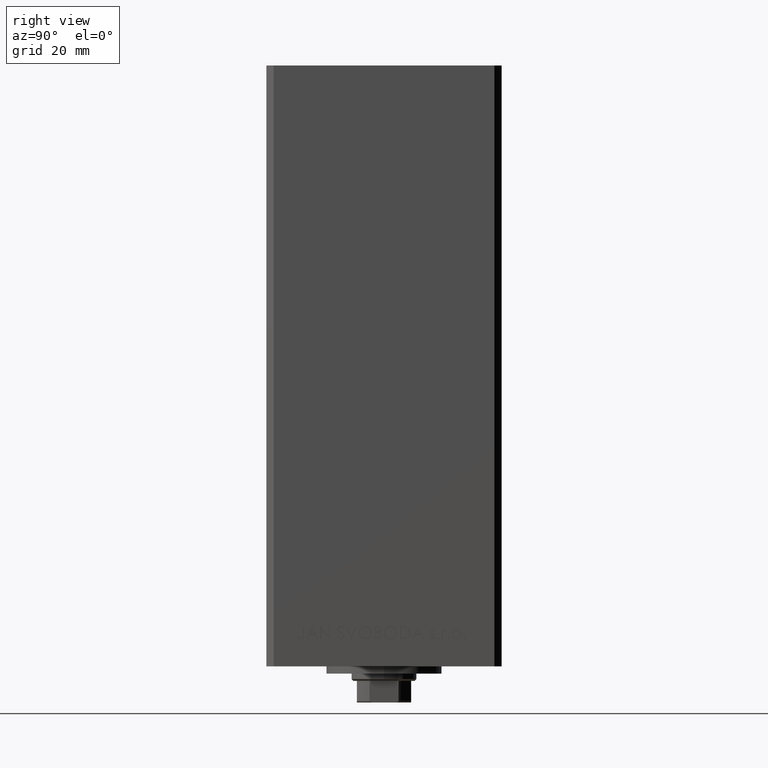
[diagram: clean part render]
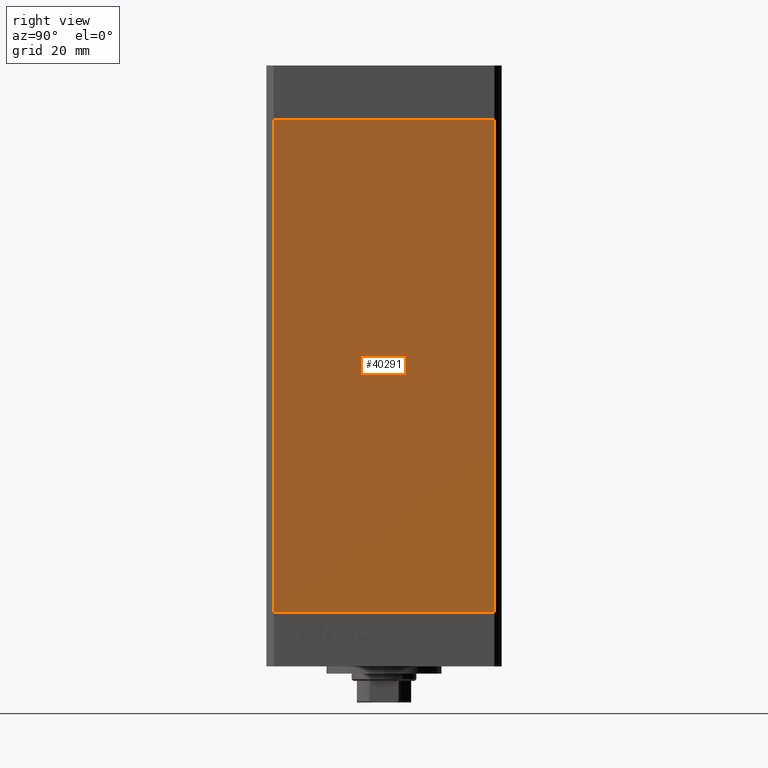
[diagram: same view with one face highlighted and labeled with its STEP entity id]
A machine part, right view. The second image highlights one B-rep face of the part: STEP entity #40291.
In plain terms, the highlighted planar face has unit normal (1, -0, 0).
Its self-contained STEP definition (entity closure, byte-faithful):
#2886 = DIRECTION ( 'NONE',  ( -0.000000000000000000, -0.000000000000000000, -1.000000000000000000 ) ) ;
#3607 = FACE_OUTER_BOUND ( 'NONE', #9615, .T. ) ;
#5762 = CARTESIAN_POINT ( 'NONE',  ( 37.50000000000000711, 30.50000000000000000, 0.000000000000000000 ) ) ;
#7390 = VECTOR ( 'NONE', #17230, 1000.000000000000000 ) ;
#7721 = CARTESIAN_POINT ( 'NONE',  ( 37.50000000000000711, 30.50000000000000000, 0.000000000000000000 ) ) ;
#9615 = EDGE_LOOP ( 'NONE', ( #14645, #40260, #41273, #45296 ) ) ;
#9826 = EDGE_CURVE ( 'NONE', #41393, #16741, #41087, .T. ) ;
#10886 = VECTOR ( 'NONE', #43957, 1000.000000000000000 ) ;
#12306 = VECTOR ( 'NONE', #2886, 1000.000000000000000 ) ;
#14599 = CARTESIAN_POINT ( 'NONE',  ( 37.50000000000000711, 30.50000000000000000, 136.0000000000000000 ) ) ;
#14645 = ORIENTED_EDGE ( 'NONE', *, *, #14710, .F. ) ;
#14710 = EDGE_CURVE ( 'NONE', #16741, #43789, #25100, .T. ) ;
#14843 = DIRECTION ( 'NONE',  ( -2.275047181608927644E-16, -1.000000000000000000, 0.000000000000000000 ) ) ;
#15086 = AXIS2_PLACEMENT_3D ( 'NONE', #38288, #27217, #34252 ) ;
#16741 = VERTEX_POINT ( 'NONE', #7721 ) ;
#17230 = DIRECTION ( 'NONE',  ( -0.000000000000000000, -0.000000000000000000, -1.000000000000000000 ) ) ;
#18357 = VECTOR ( 'NONE', #14843, 1000.000000000000000 ) ;
#18889 = VERTEX_POINT ( 'NONE', #25134 ) ;
#19114 = EDGE_CURVE ( 'NONE', #18889, #43789, #47395, .T. ) ;
#23447 = PLANE ( 'NONE',  #15086 ) ;
#25100 = LINE ( 'NONE', #5762, #10886 ) ;
#25134 = CARTESIAN_POINT ( 'NONE',  ( 37.49999999999999289, -30.50000000000000000, 136.0000000000000000 ) ) ;
#27217 = DIRECTION ( 'NONE',  ( 1.000000000000000000, -2.275047181608927644E-16, 0.000000000000000000 ) ) ;
#34252 = DIRECTION ( 'NONE',  ( 2.275047181608927644E-16, 1.000000000000000000, 0.000000000000000000 ) ) ;
#34447 = CARTESIAN_POINT ( 'NONE',  ( 37.50000000000000711, 30.50000000000000000, 136.0000000000000000 ) ) ;
#37316 = CARTESIAN_POINT ( 'NONE',  ( 37.50000000000000711, 30.50000000000000000, 136.0000000000000000 ) ) ;
#38288 = CARTESIAN_POINT ( 'NONE',  ( 37.50000000000000711, 30.50000000000000000, 136.0000000000000000 ) ) ;
#38658 = EDGE_CURVE ( 'NONE', #41393, #18889, #45000, .T. ) ;
#40260 = ORIENTED_EDGE ( 'NONE', *, *, #9826, .F. ) ;
#40291 = ADVANCED_FACE ( 'NONE', ( #3607 ), #23447, .T. ) ;
#40847 = CARTESIAN_POINT ( 'NONE',  ( 37.49999999999999289, -30.50000000000000000, 136.0000000000000000 ) ) ;
#41087 = LINE ( 'NONE', #37316, #12306 ) ;
#41273 = ORIENTED_EDGE ( 'NONE', *, *, #38658, .T. ) ;
#41393 = VERTEX_POINT ( 'NONE', #34447 ) ;
#43789 = VERTEX_POINT ( 'NONE', #47932 ) ;
#43957 = DIRECTION ( 'NONE',  ( -2.275047181608927644E-16, -1.000000000000000000, 0.000000000000000000 ) ) ;
#45000 = LINE ( 'NONE', #14599, #18357 ) ;
#45296 = ORIENTED_EDGE ( 'NONE', *, *, #19114, .T. ) ;
#47395 = LINE ( 'NONE', #40847, #7390 ) ;
#47932 = CARTESIAN_POINT ( 'NONE',  ( 37.49999999999999289, -30.50000000000000000, 0.000000000000000000 ) ) ;